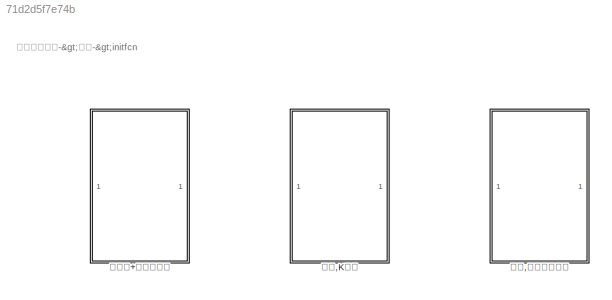
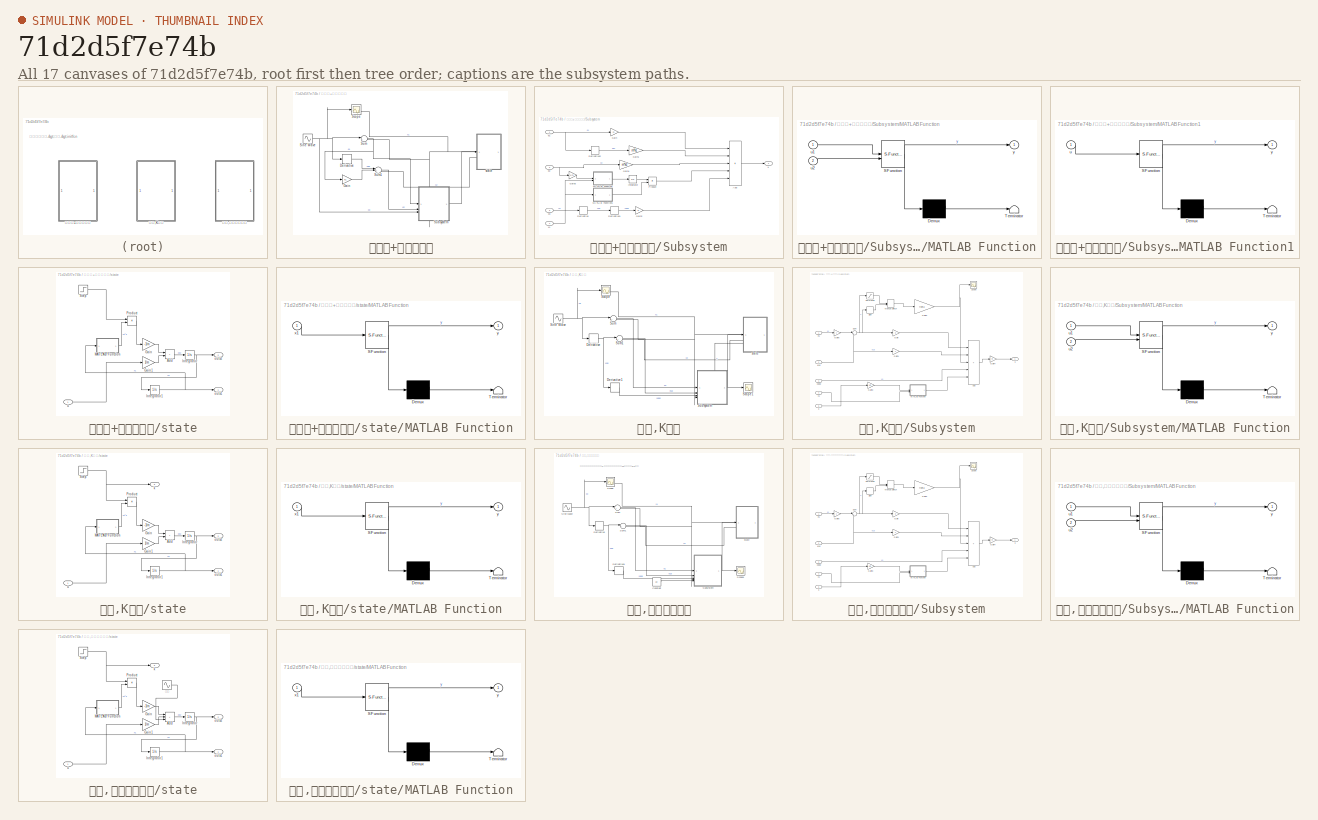
[diagram: thumbnail index - all 17 canvases of the model, root first then tree order]
MODEL slx_71d2d5f7e74b
KIND model
CONFIG AbsTol = auto
CONFIG EnableMultiTasking = off
CONFIG FixedStep = 0.0001
CONFIG InitFcn = %% 反步法与自适应参数\n% % k = 10;\n% m = 10;\n% \n% k1 = 25;\n% k2 = 25;\n%% 滑模参数\nc = 30;\np = 30;\ntheta = 20;\n\nm = 10;\n
CONFIG MaxStep = auto
CONFIG MinStep = auto
CONFIG RelTol = 1e-3
CONFIG SampleTimeConstraint = Unconstrained
CONFIG SolverName = FixedStepAuto
CONFIG StartTime = 0.0
CONFIG StopTime = 50
BLOCK [SubSystem] 反步法+自适应控制
  Commented = on
BLOCK [Derivative] 反步法+自适应控制/Derivative
BLOCK [Gain] 反步法+自适应控制/Gain
  Gain = k1
BLOCK [Scope] 反步法+自适应控制/Scope
  Floating = off
  NumInputPorts = 2
  ScopeSpecificationString = Simulink.scopes.TimeScopeBlockCfg('CurrentConfiguration', extmgr.ConfigurationSet(extmgr.Configuration('Core','General UI',true),extmgr.Configuration('Core','Source UI',true),extmgr.Configuration('Sources','WiredSimulink',true),extmgr.Configuration('Visuals','Time Domain',true,'SerializedDisplays',{struct('MinYLimReal','-0.75','MaxYLimReal','6.75001','YLabelReal','','MinYLimMag','0.00000','MaxYLim...<+1398ch>
BLOCK [Sin] 反步法+自适应控制/Sine Wave
  Bias = 5
  SampleTime = 0
BLOCK [SubSystem] 反步法+自适应控制/Subsystem
BLOCK [Sum] 反步法+自适应控制/Subsystem/Add
  IconShape = rectangular
  Inputs = +++++
BLOCK [Derivative] 反步法+自适应控制/Subsystem/Derivative
BLOCK [Derivative] 反步法+自适应控制/Subsystem/Derivative1
BLOCK [Derivative] 反步法+自适应控制/Subsystem/Derivative2
BLOCK [Gain] 反步法+自适应控制/Subsystem/Gain
  Gain = m
BLOCK [Gain] 反步法+自适应控制/Subsystem/Gain1
  Gain = m*k1
BLOCK [Gain] 反步法+自适应控制/Subsystem/Gain2
  Gain = m
BLOCK [Gain] 反步法+自适应控制/Subsystem/Gain3
  Gain = 1/m
BLOCK [Gain] 反步法+自适应控制/Subsystem/Gain4
  Gain = m*k2
BLOCK [Integrator] 反步法+自适应控制/Subsystem/Integrator
BLOCK [SubSystem] 反步法+自适应控制/Subsystem/MATLAB Function
  ErrorFcn = Stateflow.Translate.translate
  PermitHierarchicalResolution = ExplicitOnly
  SFBlockType = MATLAB Function
  TreatAsAtomicUnit = on
BLOCK [Demux] 反步法+自适应控制/Subsystem/MATLAB Function/ Demux 
  Outputs = 1
BLOCK [S-Function] 反步法+自适应控制/Subsystem/MATLAB Function/ SFunction 
  EnableBusSupport = off
  FunctionName = sf_sfun
  PortCounts = [2 2]
  SFcnIsStateOwnerBlock = off
  SFunctionDeploymentMode = off
  Tag = Stateflow S-Function 1
BLOCK [Terminator] 反步法+自适应控制/Subsystem/MATLAB Function/ Terminator 
BLOCK [Inport] 反步法+自适应控制/Subsystem/MATLAB Function/u1
BLOCK [Inport] 反步法+自适应控制/Subsystem/MATLAB Function/u2
  Port = 2
BLOCK [Outport] 反步法+自适应控制/Subsystem/MATLAB Function/y
BLOCK [SubSystem] 反步法+自适应控制/Subsystem/MATLAB Function1
  ErrorFcn = Stateflow.Translate.translate
  PermitHierarchicalResolution = ExplicitOnly
  SFBlockType = MATLAB Function
  TreatAsAtomicUnit = on
BLOCK [Demux] 反步法+自适应控制/Subsystem/MATLAB Function1/ Demux 
  Outputs = 1
BLOCK [S-Function] 反步法+自适应控制/Subsystem/MATLAB Function1/ SFunction 
  EnableBusSupport = off
  FunctionName = sf_sfun
  PortCounts = [1 2]
  SFcnIsStateOwnerBlock = off
  SFunctionDeploymentMode = off
  Tag = Stateflow S-Function 3
BLOCK [Terminator] 反步法+自适应控制/Subsystem/MATLAB Function1/ Terminator 
BLOCK [Inport] 反步法+自适应控制/Subsystem/MATLAB Function1/u
BLOCK [Outport] 反步法+自适应控制/Subsystem/MATLAB Function1/y
BLOCK [Product] 反步法+自适应控制/Subsystem/Product
BLOCK [Inport] 反步法+自适应控制/Subsystem/e1
BLOCK [Inport] 反步法+自适应控制/Subsystem/e2
  Port = 2
BLOCK [Outport] 反步法+自适应控制/Subsystem/u
BLOCK [Inport] 反步法+自适应控制/Subsystem/x1
  Port = 4
BLOCK [Inport] 反步法+自适应控制/Subsystem/xd
  Port = 3
BLOCK [Sum] 反步法+自适应控制/Sum
  Inputs = |+-
BLOCK [Sum] 反步法+自适应控制/Sum1
  Inputs = |++-
BLOCK [SubSystem] 反步法+自适应控制/state
  PortSchema = {"entries":[{"content":{"sides":[{"content":{"connectorIds":["Out1","Out2","In1"]},"type":"ConnectorPlacement.EquallySpacedRectSide","uuid":"d6ff9530-3cd8-44b3-9e02-2ac40466835c"},{"content":{"connectorIds":[],"side":"RIGHT"},"type":"ConnectorPlacement.EquallySpacedRectSide","uuid":"a7c79afe-87fc-43ce-be47-0aa427f252c3"},{"content":{"connectorIds":[],"side":"TOP"},"type":"ConnectorPlacement.Equall...<+248ch>
BLOCK [Sum] 反步法+自适应控制/state/Add
  IconShape = rectangular
BLOCK [Gain] 反步法+自适应控制/state/Gain
  Gain = -1/m
BLOCK [Gain] 反步法+自适应控制/state/Gain1
  Gain = 1/m
BLOCK [Integrator] 反步法+自适应控制/state/Integrator
BLOCK [Integrator] 反步法+自适应控制/state/Integrator1
BLOCK [SubSystem] 反步法+自适应控制/state/MATLAB Function
  ErrorFcn = Stateflow.Translate.translate
  PermitHierarchicalResolution = ExplicitOnly
  SFBlockType = MATLAB Function
  TreatAsAtomicUnit = on
BLOCK [Demux] 反步法+自适应控制/state/MATLAB Function/ Demux 
  Outputs = 1
BLOCK [S-Function] 反步法+自适应控制/state/MATLAB Function/ SFunction 
  EnableBusSupport = off
  FunctionName = sf_sfun
  PortCounts = [1 2]
  SFcnIsStateOwnerBlock = off
  SFunctionDeploymentMode = off
  Tag = Stateflow S-Function 2
BLOCK [Terminator] 反步法+自适应控制/state/MATLAB Function/ Terminator 
BLOCK [Inport] 反步法+自适应控制/state/MATLAB Function/x1
BLOCK [Outport] 反步法+自适应控制/state/MATLAB Function/y
BLOCK [Product] 反步法+自适应控制/state/Product
BLOCK [Step] 反步法+自适应控制/state/Step
  After = 5
  Before = 10
  SampleTime = 0
  Time = 5
BLOCK [Outport] 反步法+自适应控制/state/outx1
BLOCK [Outport] 反步法+自适应控制/state/outx2
  Port = 2
BLOCK [Inport] 反步法+自适应控制/state/u
BLOCK [SubSystem] 滑模,K已知
  Commented = on
BLOCK [Derivative] 滑模,K已知/Derivative
BLOCK [Derivative] 滑模,K已知/Derivative1
BLOCK [Scope] 滑模,K已知/Scope
  Floating = off
  NumInputPorts = 2
  ScopeSpecificationString = Simulink.scopes.TimeScopeBlockCfg('CurrentConfiguration', extmgr.ConfigurationSet(extmgr.Configuration('Core','General UI',true),extmgr.Configuration('Core','Source UI',true),extmgr.Configuration('Sources','WiredSimulink',true),extmgr.Configuration('Visuals','Time Domain',true,'SerializedDisplays',{struct('MinYLimReal','-6.25','MaxYLimReal','6.25','YLabelReal','','MinYLimMag','0.00000','MaxYLimMag...<+1382ch>
BLOCK [Scope] 滑模,K已知/Scope1
  Floating = off
  NumInputPorts = 1
  ScopeSpecificationString = Simulink.scopes.TimeScopeBlockCfg('CurrentConfiguration', extmgr.ConfigurationSet(extmgr.Configuration('Core','General UI',true),extmgr.Configuration('Core','Source UI',true),extmgr.Configuration('Sources','WiredSimulink',true,'DataLoggingVariableName','ScopeData2'),extmgr.Configuration('Visuals','Time Domain',true,'SerializedDisplays',{struct('MinYLimReal','-14813.00059','MaxYLimReal','-8416.5169...<+1442ch>
BLOCK [Sin] 滑模,K已知/Sine Wave
  Amplitude = 5
  Frequency = 0.5
  SampleTime = 0
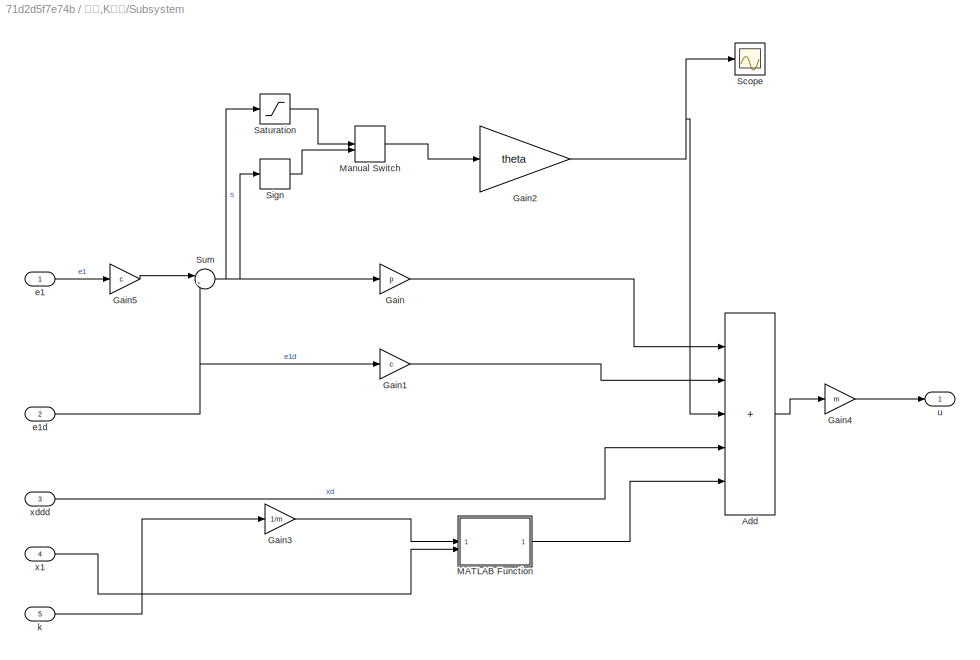
BLOCK [SubSystem] 滑模,K已知/Subsystem
BLOCK [Sum] 滑模,K已知/Subsystem/Add
  IconShape = rectangular
  Inputs = +++++
BLOCK [Gain] 滑模,K已知/Subsystem/Gain
  Gain = p
BLOCK [Gain] 滑模,K已知/Subsystem/Gain1
  Gain = c
BLOCK [Gain] 滑模,K已知/Subsystem/Gain2
  Gain = theta
BLOCK [Gain] 滑模,K已知/Subsystem/Gain3
  Gain = 1/m
BLOCK [Gain] 滑模,K已知/Subsystem/Gain4
  Gain = m
BLOCK [Gain] 滑模,K已知/Subsystem/Gain5
  Gain = c
BLOCK [SubSystem] 滑模,K已知/Subsystem/MATLAB Function
  ErrorFcn = Stateflow.Translate.translate
  PermitHierarchicalResolution = ExplicitOnly
  SFBlockType = MATLAB Function
  TreatAsAtomicUnit = on
BLOCK [Demux] 滑模,K已知/Subsystem/MATLAB Function/ Demux 
  Outputs = 1
BLOCK [S-Function] 滑模,K已知/Subsystem/MATLAB Function/ SFunction 
  EnableBusSupport = on
  FunctionName = sf_sfun
  PortCounts = [2 2]
  SFcnIsStateOwnerBlock = off
  SFunctionDeploymentMode = off
  Tag = Stateflow S-Function 4
BLOCK [Terminator] 滑模,K已知/Subsystem/MATLAB Function/ Terminator 
BLOCK [Inport] 滑模,K已知/Subsystem/MATLAB Function/u1
BLOCK [Inport] 滑模,K已知/Subsystem/MATLAB Function/u2
  Port = 2
BLOCK [Outport] 滑模,K已知/Subsystem/MATLAB Function/y
BLOCK [ManualSwitch] 滑模,K已知/Subsystem/Manual Switch
BLOCK [Saturate] 滑模,K已知/Subsystem/Saturation
BLOCK [Scope] 滑模,K已知/Subsystem/Scope
  Floating = off
  NumInputPorts = 1
  ScopeSpecificationString = Simulink.scopes.TimeScopeBlockCfg('CurrentConfiguration', extmgr.ConfigurationSet(extmgr.Configuration('Core','General UI',true),extmgr.Configuration('Core','Source UI',true),extmgr.Configuration('Sources','WiredSimulink',true,'DataLoggingVariableName','ScopeData1'),extmgr.Configuration('Visuals','Time Domain',true,'SerializedDisplays',{struct('MinYLimReal','-25.00000','MaxYLimReal','25.00000','YL...<+1389ch>
BLOCK [Signum] 滑模,K已知/Subsystem/Sign
BLOCK [Sum] 滑模,K已知/Subsystem/Sum
  Inputs = |++
BLOCK [Inport] 滑模,K已知/Subsystem/e1
BLOCK [Inport] 滑模,K已知/Subsystem/e1d
  Port = 2
BLOCK [Inport] 滑模,K已知/Subsystem/k
  Port = 5
BLOCK [Outport] 滑模,K已知/Subsystem/u
BLOCK [Inport] 滑模,K已知/Subsystem/x1
  Port = 4
BLOCK [Inport] 滑模,K已知/Subsystem/xddd
  Port = 3
BLOCK [Sum] 滑模,K已知/Sum
  Inputs = |+-
BLOCK [Sum] 滑模,K已知/Sum1
  Inputs = |+-
BLOCK [SubSystem] 滑模,K已知/state
  PortSchema = {"entries":[{"content":{"sides":[{"content":{"connectorIds":["Out1","Out2","Out3","In1"]},"type":"ConnectorPlacement.EquallySpacedRectSide","uuid":"d6ff9530-3cd8-44b3-9e02-2ac40466835c"},{"content":{"side":"RIGHT"},"type":"ConnectorPlacement.EquallySpacedRectSide","uuid":"a7c79afe-87fc-43ce-be47-0aa427f252c3"},{"content":{"side":"TOP"},"type":"ConnectorPlacement.EquallySpacedRectSide","uuid":"01a8...<+219ch>
BLOCK [Sum] 滑模,K已知/state/Add
  IconShape = rectangular
BLOCK [Gain] 滑模,K已知/state/Gain
  Gain = -1/m
BLOCK [Gain] 滑模,K已知/state/Gain1
  Gain = 1/m
BLOCK [Integrator] 滑模,K已知/state/Integrator
BLOCK [Integrator] 滑模,K已知/state/Integrator1
BLOCK [SubSystem] 滑模,K已知/state/MATLAB Function
  ErrorFcn = Stateflow.Translate.translate
  PermitHierarchicalResolution = ExplicitOnly
  SFBlockType = MATLAB Function
  TreatAsAtomicUnit = on
BLOCK [Demux] 滑模,K已知/state/MATLAB Function/ Demux 
  Outputs = 1
BLOCK [S-Function] 滑模,K已知/state/MATLAB Function/ SFunction 
  EnableBusSupport = on
  FunctionName = sf_sfun
  PortCounts = [1 2]
  SFcnIsStateOwnerBlock = off
  SFunctionDeploymentMode = off
  Tag = Stateflow S-Function 6
BLOCK [Terminator] 滑模,K已知/state/MATLAB Function/ Terminator 
BLOCK [Inport] 滑模,K已知/state/MATLAB Function/x1
BLOCK [Outport] 滑模,K已知/state/MATLAB Function/y
BLOCK [Product] 滑模,K已知/state/Product
BLOCK [Step] 滑模,K已知/state/Step
  After = 100
  Before = 10
  SampleTime = 0
  Time = 5
BLOCK [Outport] 滑模,K已知/state/k
  Port = 3
BLOCK [Outport] 滑模,K已知/state/outx1
BLOCK [Outport] 滑模,K已知/state/outx2
  Port = 2
BLOCK [Inport] 滑模,K已知/state/u
BLOCK [SubSystem] 滑模,存在未知干扰
BLOCK [Constant] 滑模,存在未知干扰/Constant
  Value = 10
BLOCK [Derivative] 滑模,存在未知干扰/Derivative
BLOCK [Derivative] 滑模,存在未知干扰/Derivative1
BLOCK [Scope] 滑模,存在未知干扰/Scope
  Floating = off
  NumInputPorts = 2
  ScopeSpecificationString = Simulink.scopes.TimeScopeBlockCfg('CurrentConfiguration', extmgr.ConfigurationSet(extmgr.Configuration('Core','General UI',true),extmgr.Configuration('Core','Source UI',true),extmgr.Configuration('Sources','WiredSimulink',true),extmgr.Configuration('Visuals','Time Domain',true,'SerializedDisplays',{struct('MinYLimReal','-6.2508','MaxYLimReal','6.25721','YLabelReal','','MinYLimMag','0.00000','MaxYL...<+1407ch>
BLOCK [Scope] 滑模,存在未知干扰/Scope1
  Floating = off
  NumInputPorts = 1
  ScopeSpecificationString = Simulink.scopes.TimeScopeBlockCfg('CurrentConfiguration', extmgr.ConfigurationSet(extmgr.Configuration('Core','General UI',true),extmgr.Configuration('Core','Source UI',true),extmgr.Configuration('Sources','WiredSimulink',true,'DataLoggingVariableName','ScopeData2'),extmgr.Configuration('Visuals','Time Domain',true,'SerializedDisplays',{struct('MinYLimReal','-45238.73173','MaxYLimReal','282260.898...<+1446ch>
BLOCK [Sin] 滑模,存在未知干扰/Sine Wave
  Amplitude = 5
  Frequency = 0.5
  SampleTime = 0
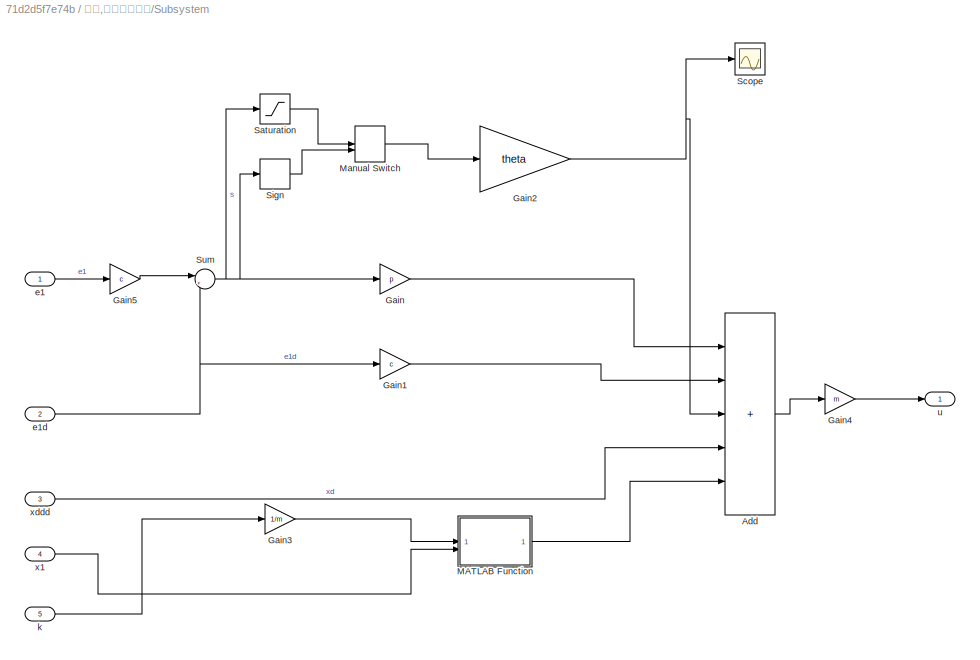
BLOCK [SubSystem] 滑模,存在未知干扰/Subsystem
BLOCK [Sum] 滑模,存在未知干扰/Subsystem/Add
  IconShape = rectangular
  Inputs = +++++
BLOCK [Gain] 滑模,存在未知干扰/Subsystem/Gain
  Gain = p
BLOCK [Gain] 滑模,存在未知干扰/Subsystem/Gain1
  Gain = c
BLOCK [Gain] 滑模,存在未知干扰/Subsystem/Gain2
  Gain = theta
BLOCK [Gain] 滑模,存在未知干扰/Subsystem/Gain3
  Gain = 1/m
BLOCK [Gain] 滑模,存在未知干扰/Subsystem/Gain4
  Gain = m
BLOCK [Gain] 滑模,存在未知干扰/Subsystem/Gain5
  Gain = c
BLOCK [SubSystem] 滑模,存在未知干扰/Subsystem/MATLAB Function
  ErrorFcn = Stateflow.Translate.translate
  PermitHierarchicalResolution = ExplicitOnly
  SFBlockType = MATLAB Function
  TreatAsAtomicUnit = on
BLOCK [Demux] 滑模,存在未知干扰/Subsystem/MATLAB Function/ Demux 
  Outputs = 1
BLOCK [S-Function] 滑模,存在未知干扰/Subsystem/MATLAB Function/ SFunction 
  EnableBusSupport = on
  FunctionName = sf_sfun
  PortCounts = [2 2]
  SFcnIsStateOwnerBlock = off
  SFunctionDeploymentMode = off
  Tag = Stateflow S-Function 5
BLOCK [Terminator] 滑模,存在未知干扰/Subsystem/MATLAB Function/ Terminator 
BLOCK [Inport] 滑模,存在未知干扰/Subsystem/MATLAB Function/u1
BLOCK [Inport] 滑模,存在未知干扰/Subsystem/MATLAB Function/u2
  Port = 2
BLOCK [Outport] 滑模,存在未知干扰/Subsystem/MATLAB Function/y
BLOCK [ManualSwitch] 滑模,存在未知干扰/Subsystem/Manual Switch
BLOCK [Saturate] 滑模,存在未知干扰/Subsystem/Saturation
BLOCK [Scope] 滑模,存在未知干扰/Subsystem/Scope
  Floating = off
  NumInputPorts = 1
  ScopeSpecificationString = Simulink.scopes.TimeScopeBlockCfg('CurrentConfiguration', extmgr.ConfigurationSet(extmgr.Configuration('Core','General UI',true),extmgr.Configuration('Core','Source UI',true),extmgr.Configuration('Sources','WiredSimulink',true,'DataLoggingVariableName','ScopeData1'),extmgr.Configuration('Visuals','Time Domain',true,'SerializedDisplays',{struct('MinYLimReal','-25.00000','MaxYLimReal','25.00000','YL...<+1389ch>
BLOCK [Signum] 滑模,存在未知干扰/Subsystem/Sign
BLOCK [Sum] 滑模,存在未知干扰/Subsystem/Sum
  Inputs = |++
BLOCK [Inport] 滑模,存在未知干扰/Subsystem/e1
BLOCK [Inport] 滑模,存在未知干扰/Subsystem/e1d
  Port = 2
BLOCK [Inport] 滑模,存在未知干扰/Subsystem/k
  Port = 5
BLOCK [Outport] 滑模,存在未知干扰/Subsystem/u
BLOCK [Inport] 滑模,存在未知干扰/Subsystem/x1
  Port = 4
BLOCK [Inport] 滑模,存在未知干扰/Subsystem/xddd
  Port = 3
BLOCK [Sum] 滑模,存在未知干扰/Sum
  Inputs = |+-
BLOCK [Sum] 滑模,存在未知干扰/Sum1
  Inputs = |+-
BLOCK [SubSystem] 滑模,存在未知干扰/state
  PortSchema = {"entries":[{"content":{"sides":[{"content":{"connectorIds":["Out1","Out2","Out3","In1"]},"type":"ConnectorPlacement.EquallySpacedRectSide","uuid":"d6ff9530-3cd8-44b3-9e02-2ac40466835c"},{"content":{"side":"RIGHT"},"type":"ConnectorPlacement.EquallySpacedRectSide","uuid":"a7c79afe-87fc-43ce-be47-0aa427f252c3"},{"content":{"side":"TOP"},"type":"ConnectorPlacement.EquallySpacedRectSide","uuid":"01a8...<+219ch>
BLOCK [Sum] 滑模,存在未知干扰/state/Add
  IconShape = rectangular
  Inputs = +++
BLOCK [Gain] 滑模,存在未知干扰/state/Gain
  Gain = -1/m
BLOCK [Gain] 滑模,存在未知干扰/state/Gain1
  Gain = 1/m
BLOCK [Integrator] 滑模,存在未知干扰/state/Integrator
BLOCK [Integrator] 滑模,存在未知干扰/state/Integrator1
BLOCK [SubSystem] 滑模,存在未知干扰/state/MATLAB Function
  ErrorFcn = Stateflow.Translate.translate
  PermitHierarchicalResolution = ExplicitOnly
  SFBlockType = MATLAB Function
  TreatAsAtomicUnit = on
BLOCK [Demux] 滑模,存在未知干扰/state/MATLAB Function/ Demux 
  Outputs = 1
BLOCK [S-Function] 滑模,存在未知干扰/state/MATLAB Function/ SFunction 
  EnableBusSupport = on
  FunctionName = sf_sfun
  PortCounts = [1 2]
  SFcnIsStateOwnerBlock = off
  SFunctionDeploymentMode = off
  Tag = Stateflow S-Function 7
BLOCK [Terminator] 滑模,存在未知干扰/state/MATLAB Function/ Terminator 
BLOCK [Inport] 滑模,存在未知干扰/state/MATLAB Function/x1
BLOCK [Outport] 滑模,存在未知干扰/state/MATLAB Function/y
BLOCK [Product] 滑模,存在未知干扰/state/Product
BLOCK [Step] 滑模,存在未知干扰/state/Step
  After = 100
  Before = 10
  SampleTime = 0
  Time = 25
BLOCK [Outport] 滑模,存在未知干扰/state/k
  Port = 3
BLOCK [Outport] 滑模,存在未知干扰/state/outx1
BLOCK [Outport] 滑模,存在未知干扰/state/outx2
  Port = 2
BLOCK [Inport] 滑模,存在未知干扰/state/u
BLOCK [Sin] 滑模,存在未知干扰/state/干扰
  Amplitude = 10
  Frequency = 2
  Phase = pi/2
  SampleTime = 0
ANNOTATION (root): 右键模型属性->回调->initfcn
ANNOTATION 滑模,存在未知干扰: 存在两种干扰：第一种变K的干扰；第二种，在x2中加入的sin干扰
LINE 反步法+自适应控制/Derivative:1 -> 反步法+自适应控制/Sum1:1
LINE 反步法+自适应控制/Gain:1 -> 反步法+自适应控制/Sum1:2
NET 反步法+自适应控制/Sine Wave:1 -> 反步法+自适应控制/Derivative:1, 反步法+自适应控制/Scope:1, 反步法+自适应控制/Subsystem:3, 反步法+自适应控制/Sum:1
LINE 反步法+自适应控制/Subsystem/Add:1 -> 反步法+自适应控制/Subsystem/u:1
LINE 反步法+自适应控制/Subsystem/Derivative1:1 -> 反步法+自适应控制/Subsystem/Gain2:1
LINE 反步法+自适应控制/Subsystem/Derivative2:1 -> 反步法+自适应控制/Subsystem/Gain1:1
LINE 反步法+自适应控制/Subsystem/Derivative:1 -> 反步法+自适应控制/Subsystem/Derivative1:1
LINE 反步法+自适应控制/Subsystem/Gain1:1 -> 反步法+自适应控制/Subsystem/Add:2
LINE 反步法+自适应控制/Subsystem/Gain2:1 -> 反步法+自适应控制/Subsystem/Add:5
LINE 反步法+自适应控制/Subsystem/Gain3:1 -> 反步法+自适应控制/Subsystem/MATLAB Function:1
LINE 反步法+自适应控制/Subsystem/Gain4:1 -> 反步法+自适应控制/Subsystem/Add:3
LINE 反步法+自适应控制/Subsystem/Gain:1 -> 反步法+自适应控制/Subsystem/Add:1
LINE 反步法+自适应控制/Subsystem/Integrator:1 -> 反步法+自适应控制/Subsystem/Product:1
LINE 反步法+自适应控制/Subsystem/MATLAB Function1:1 -> 反步法+自适应控制/Subsystem/Product:2
LINE 反步法+自适应控制/Subsystem/MATLAB Function:1 -> 反步法+自适应控制/Subsystem/Integrator:1
LINE 反步法+自适应控制/Subsystem/Product:1 -> 反步法+自适应控制/Subsystem/Add:4
NET 反步法+自适应控制/Subsystem/e1:1 -> 反步法+自适应控制/Subsystem/Derivative2:1, 反步法+自适应控制/Subsystem/Gain:1
NET 反步法+自适应控制/Subsystem/e2:1 -> 反步法+自适应控制/Subsystem/Gain3:1, 反步法+自适应控制/Subsystem/Gain4:1
NET 反步法+自适应控制/Subsystem/x1:1 -> 反步法+自适应控制/Subsystem/MATLAB Function1:1, 反步法+自适应控制/Subsystem/MATLAB Function:2
LINE 反步法+自适应控制/Subsystem/xd:1 -> 反步法+自适应控制/Subsystem/Derivative:1
LINE 反步法+自适应控制/Subsystem:1 -> 反步法+自适应控制/state:1
LINE 反步法+自适应控制/Sum1:1 -> 反步法+自适应控制/Subsystem:2
NET 反步法+自适应控制/Sum:1 -> 反步法+自适应控制/Gain:1, 反步法+自适应控制/Subsystem:1
LINE 反步法+自适应控制/state/Add:1 -> 反步法+自适应控制/state/Integrator:1
LINE 反步法+自适应控制/state/Gain1:1 -> 反步法+自适应控制/state/Add:2
LINE 反步法+自适应控制/state/Gain:1 -> 反步法+自适应控制/state/Add:1
NET 反步法+自适应控制/state/Integrator1:1 -> 反步法+自适应控制/state/MATLAB Function:1, 反步法+自适应控制/state/outx1:1
NET 反步法+自适应控制/state/Integrator:1 -> 反步法+自适应控制/state/Integrator1:1, 反步法+自适应控制/state/outx2:1
LINE 反步法+自适应控制/state/MATLAB Function:1 -> 反步法+自适应控制/state/Product:2
LINE 反步法+自适应控制/state/Product:1 -> 反步法+自适应控制/state/Gain:1
LINE 反步法+自适应控制/state/Step:1 -> 反步法+自适应控制/state/Product:1
LINE 反步法+自适应控制/state/u:1 -> 反步法+自适应控制/state/Gain1:1
NET 反步法+自适应控制/state:1 -> 反步法+自适应控制/Scope:2, 反步法+自适应控制/Subsystem:4, 反步法+自适应控制/Sum:2
LINE 反步法+自适应控制/state:2 -> 反步法+自适应控制/Sum1:3
LINE 滑模,K已知/Derivative1:1 -> 滑模,K已知/Subsystem:3
NET 滑模,K已知/Derivative:1 -> 滑模,K已知/Derivative1:1, 滑模,K已知/Sum1:1
NET 滑模,K已知/Sine Wave:1 -> 滑模,K已知/Derivative:1, 滑模,K已知/Scope:1, 滑模,K已知/Sum:1
LINE 滑模,K已知/Subsystem/Add:1 -> 滑模,K已知/Subsystem/Gain4:1
LINE 滑模,K已知/Subsystem/Gain1:1 -> 滑模,K已知/Subsystem/Add:2
NET 滑模,K已知/Subsystem/Gain2:1 -> 滑模,K已知/Subsystem/Add:3, 滑模,K已知/Subsystem/Scope:1
LINE 滑模,K已知/Subsystem/Gain3:1 -> 滑模,K已知/Subsystem/MATLAB Function:1
LINE 滑模,K已知/Subsystem/Gain4:1 -> 滑模,K已知/Subsystem/u:1
LINE 滑模,K已知/Subsystem/Gain5:1 -> 滑模,K已知/Subsystem/Sum:1
LINE 滑模,K已知/Subsystem/Gain:1 -> 滑模,K已知/Subsystem/Add:1
LINE 滑模,K已知/Subsystem/MATLAB Function:1 -> 滑模,K已知/Subsystem/Add:5
LINE 滑模,K已知/Subsystem/Manual Switch:1 -> 滑模,K已知/Subsystem/Gain2:1
LINE 滑模,K已知/Subsystem/Saturation:1 -> 滑模,K已知/Subsystem/Manual Switch:1
LINE 滑模,K已知/Subsystem/Sign:1 -> 滑模,K已知/Subsystem/Manual Switch:2
NET 滑模,K已知/Subsystem/Sum:1 -> 滑模,K已知/Subsystem/Gain:1, 滑模,K已知/Subsystem/Saturation:1, 滑模,K已知/Subsystem/Sign:1
LINE 滑模,K已知/Subsystem/e1:1 -> 滑模,K已知/Subsystem/Gain5:1
NET 滑模,K已知/Subsystem/e1d:1 -> 滑模,K已知/Subsystem/Gain1:1, 滑模,K已知/Subsystem/Sum:2
LINE 滑模,K已知/Subsystem/k:1 -> 滑模,K已知/Subsystem/Gain3:1
LINE 滑模,K已知/Subsystem/x1:1 -> 滑模,K已知/Subsystem/MATLAB Function:2
LINE 滑模,K已知/Subsystem/xddd:1 -> 滑模,K已知/Subsystem/Add:4
NET 滑模,K已知/Subsystem:1 -> 滑模,K已知/Scope1:1, 滑模,K已知/state:1
LINE 滑模,K已知/Sum1:1 -> 滑模,K已知/Subsystem:2
LINE 滑模,K已知/Sum:1 -> 滑模,K已知/Subsystem:1
LINE 滑模,K已知/state/Add:1 -> 滑模,K已知/state/Integrator:1
LINE 滑模,K已知/state/Gain1:1 -> 滑模,K已知/state/Add:2
LINE 滑模,K已知/state/Gain:1 -> 滑模,K已知/state/Add:1
NET 滑模,K已知/state/Integrator1:1 -> 滑模,K已知/state/MATLAB Function:1, 滑模,K已知/state/outx1:1
NET 滑模,K已知/state/Integrator:1 -> 滑模,K已知/state/Integrator1:1, 滑模,K已知/state/outx2:1
LINE 滑模,K已知/state/MATLAB Function:1 -> 滑模,K已知/state/Product:2
LINE 滑模,K已知/state/Product:1 -> 滑模,K已知/state/Gain:1
NET 滑模,K已知/state/Step:1 -> 滑模,K已知/state/Product:1, 滑模,K已知/state/k:1
LINE 滑模,K已知/state/u:1 -> 滑模,K已知/state/Gain1:1
NET 滑模,K已知/state:1 -> 滑模,K已知/Scope:2, 滑模,K已知/Subsystem:4, 滑模,K已知/Sum:2
LINE 滑模,K已知/state:2 -> 滑模,K已知/Sum1:2
LINE 滑模,K已知/state:3 -> 滑模,K已知/Subsystem:5
LINE 滑模,存在未知干扰/Constant:1 -> 滑模,存在未知干扰/Subsystem:5
LINE 滑模,存在未知干扰/Derivative1:1 -> 滑模,存在未知干扰/Subsystem:3
NET 滑模,存在未知干扰/Derivative:1 -> 滑模,存在未知干扰/Derivative1:1, 滑模,存在未知干扰/Sum1:1
NET 滑模,存在未知干扰/Sine Wave:1 -> 滑模,存在未知干扰/Derivative:1, 滑模,存在未知干扰/Scope:1, 滑模,存在未知干扰/Sum:1
LINE 滑模,存在未知干扰/Subsystem/Add:1 -> 滑模,存在未知干扰/Subsystem/Gain4:1
LINE 滑模,存在未知干扰/Subsystem/Gain1:1 -> 滑模,存在未知干扰/Subsystem/Add:2
NET 滑模,存在未知干扰/Subsystem/Gain2:1 -> 滑模,存在未知干扰/Subsystem/Add:3, 滑模,存在未知干扰/Subsystem/Scope:1
LINE 滑模,存在未知干扰/Subsystem/Gain3:1 -> 滑模,存在未知干扰/Subsystem/MATLAB Function:1
LINE 滑模,存在未知干扰/Subsystem/Gain4:1 -> 滑模,存在未知干扰/Subsystem/u:1
LINE 滑模,存在未知干扰/Subsystem/Gain5:1 -> 滑模,存在未知干扰/Subsystem/Sum:1
LINE 滑模,存在未知干扰/Subsystem/Gain:1 -> 滑模,存在未知干扰/Subsystem/Add:1
LINE 滑模,存在未知干扰/Subsystem/MATLAB Function:1 -> 滑模,存在未知干扰/Subsystem/Add:5
LINE 滑模,存在未知干扰/Subsystem/Manual Switch:1 -> 滑模,存在未知干扰/Subsystem/Gain2:1
LINE 滑模,存在未知干扰/Subsystem/Saturation:1 -> 滑模,存在未知干扰/Subsystem/Manual Switch:1
LINE 滑模,存在未知干扰/Subsystem/Sign:1 -> 滑模,存在未知干扰/Subsystem/Manual Switch:2
NET 滑模,存在未知干扰/Subsystem/Sum:1 -> 滑模,存在未知干扰/Subsystem/Gain:1, 滑模,存在未知干扰/Subsystem/Saturation:1, 滑模,存在未知干扰/Subsystem/Sign:1
LINE 滑模,存在未知干扰/Subsystem/e1:1 -> 滑模,存在未知干扰/Subsystem/Gain5:1
NET 滑模,存在未知干扰/Subsystem/e1d:1 -> 滑模,存在未知干扰/Subsystem/Gain1:1, 滑模,存在未知干扰/Subsystem/Sum:2
LINE 滑模,存在未知干扰/Subsystem/k:1 -> 滑模,存在未知干扰/Subsystem/Gain3:1
LINE 滑模,存在未知干扰/Subsystem/x1:1 -> 滑模,存在未知干扰/Subsystem/MATLAB Function:2
LINE 滑模,存在未知干扰/Subsystem/xddd:1 -> 滑模,存在未知干扰/Subsystem/Add:4
NET 滑模,存在未知干扰/Subsystem:1 -> 滑模,存在未知干扰/Scope1:1, 滑模,存在未知干扰/state:1
LINE 滑模,存在未知干扰/Sum1:1 -> 滑模,存在未知干扰/Subsystem:2
LINE 滑模,存在未知干扰/Sum:1 -> 滑模,存在未知干扰/Subsystem:1
LINE 滑模,存在未知干扰/state/Add:1 -> 滑模,存在未知干扰/state/Integrator:1
LINE 滑模,存在未知干扰/state/Gain1:1 -> 滑模,存在未知干扰/state/Add:2
LINE 滑模,存在未知干扰/state/Gain:1 -> 滑模,存在未知干扰/state/Add:1
NET 滑模,存在未知干扰/state/Integrator1:1 -> 滑模,存在未知干扰/state/MATLAB Function:1, 滑模,存在未知干扰/state/outx1:1
NET 滑模,存在未知干扰/state/Integrator:1 -> 滑模,存在未知干扰/state/Integrator1:1, 滑模,存在未知干扰/state/outx2:1
LINE 滑模,存在未知干扰/state/MATLAB Function:1 -> 滑模,存在未知干扰/state/Product:2
LINE 滑模,存在未知干扰/state/Product:1 -> 滑模,存在未知干扰/state/Gain:1
NET 滑模,存在未知干扰/state/Step:1 -> 滑模,存在未知干扰/state/Product:1, 滑模,存在未知干扰/state/k:1
LINE 滑模,存在未知干扰/state/u:1 -> 滑模,存在未知干扰/state/Gain1:1
LINE 滑模,存在未知干扰/state/干扰:1 -> 滑模,存在未知干扰/state/Add:3
NET 滑模,存在未知干扰/state:1 -> 滑模,存在未知干扰/Scope:2, 滑模,存在未知干扰/Subsystem:4, 滑模,存在未知干扰/Sum:2
LINE 滑模,存在未知干扰/state:2 -> 滑模,存在未知干扰/Sum1:2
note: NET lines group one-source signal fan-out (src -> all destinations, sorted); 1:1 wires keep LINE
CHART 反步法+自适应控制/state/MATLAB Function states=1 transitions=1
  STATE_LABEL 'eML_blk_kernel()'
  STATE_LABEL 'SCRIPT:\nfunction y = fcn(x1)\n\ny = x1^3;\n'
CHART 反步法+自适应控制/Subsystem/MATLAB Function1 states=1 transitions=1
  STATE_LABEL 'eML_blk_kernel()'
  STATE_LABEL 'SCRIPT:\nfunction y = fcn(u)\n\ny = u^3;\n'
CHART 滑模,K已知/Subsystem/MATLAB Function states=1 transitions=1
  STATE_LABEL 'eML_blk_kernel()'
  STATE_LABEL 'SCRIPT:\nfunction y = fcn(u1,u2)\n\ny = u1*u2^3;\n'
CHART 滑模,存在未知干扰/Subsystem/MATLAB Function states=1 transitions=1
  STATE_LABEL 'eML_blk_kernel()'
  STATE_LABEL 'SCRIPT:\nfunction y = fcn(u1,u2)\n\ny = u1*u2^3;\n'
CHART 滑模,K已知/state/MATLAB Function states=1 transitions=1
  STATE_LABEL 'eML_blk_kernel()'
  STATE_LABEL 'SCRIPT:\nfunction y = fcn(x1)\n\ny = x1^3;\n'
CHART 滑模,存在未知干扰/state/MATLAB Function states=1 transitions=1
  STATE_LABEL 'eML_blk_kernel()'
  STATE_LABEL 'SCRIPT:\nfunction y = fcn(x1)\n\ny = x1^3;\n'
CHART 反步法+自适应控制/Subsystem/MATLAB Function states=1 transitions=1
  STATE_LABEL 'eML_blk_kernel()'
  STATE_LABEL 'SCRIPT:\nfunction y = fcn(u1,u2)\n\ny = u1*u2^3;\n'
CHART  states=0 transitions=0
CHART  states=0 transitions=0
CHART  states=0 transitions=0
CHART  states=0 transitions=0
CHART  states=0 transitions=0
CHART  states=0 transitions=0
CHART  states=0 transitions=0
